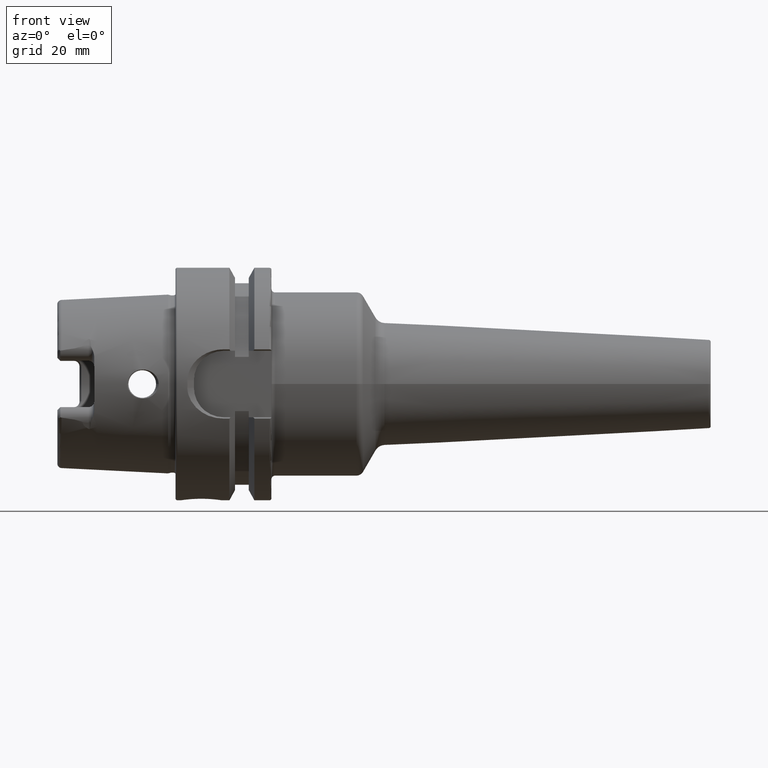
[diagram: clean part render]
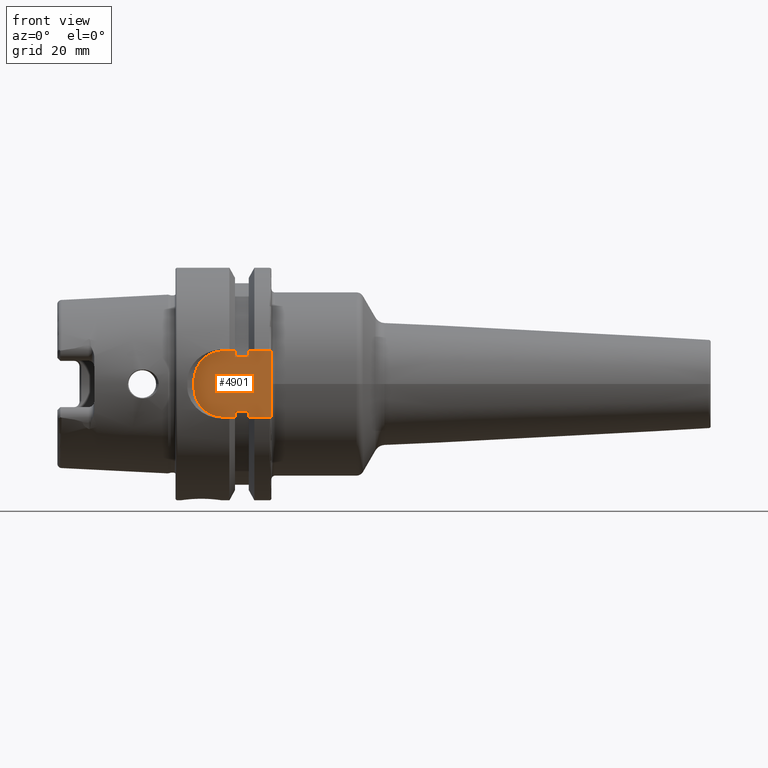
[diagram: same view with one face highlighted and labeled with its STEP entity id]
A machine part, front view. The second image highlights one B-rep face of the part: STEP entity #4901.
In plain terms, the highlighted planar face has unit normal (0, 1, 0).
Its self-contained STEP definition (entity closure, byte-faithful):
#1694=DIRECTION('',(0.E0,0.E0,1.E0));
#1695=VECTOR('',#1694,1.651530771650E0);
#1696=CARTESIAN_POINT('',(1.6125E1,-2.65E1,-9.E0));
#1697=LINE('',#1696,#1695);
#1726=DIRECTION('',(0.E0,0.E0,1.E0));
#1727=VECTOR('',#1726,1.651530771650E0);
#1728=CARTESIAN_POINT('',(1.6125E1,-2.65E1,7.348469228350E0));
#1729=LINE('',#1728,#1727);
#1734=CARTESIAN_POINT('',(1.3E1,-2.65E1,1.E0));
#1735=DIRECTION('',(0.E0,-1.E0,0.E0));
#1736=DIRECTION('',(0.E0,0.E0,1.E0));
#1737=AXIS2_PLACEMENT_3D('',#1734,#1735,#1736);
#1739=DIRECTION('',(1.E0,0.E0,0.E0));
#1740=VECTOR('',#1739,3.125E0);
#1741=CARTESIAN_POINT('',(1.3E1,-2.65E1,9.E0));
#1742=LINE('',#1741,#1740);
#1743=DIRECTION('',(1.E0,0.E0,0.E0));
#1744=VECTOR('',#1743,6.125E0);
#1745=CARTESIAN_POINT('',(1.9875E1,-2.65E1,9.E0));
#1746=LINE('',#1745,#1744);
#1747=DIRECTION('',(-1.E0,0.E0,0.E0));
#1748=VECTOR('',#1747,6.125E0);
#1749=CARTESIAN_POINT('',(2.6E1,-2.65E1,-9.E0));
#1750=LINE('',#1749,#1748);
#1751=DIRECTION('',(-1.E0,0.E0,0.E0));
#1752=VECTOR('',#1751,3.125E0);
#1753=CARTESIAN_POINT('',(1.6125E1,-2.65E1,-9.E0));
#1754=LINE('',#1753,#1752);
#1755=CARTESIAN_POINT('',(1.3E1,-2.65E1,-1.E0));
#1756=DIRECTION('',(0.E0,-1.E0,0.E0));
#1757=DIRECTION('',(-1.E0,0.E0,0.E0));
#1758=AXIS2_PLACEMENT_3D('',#1755,#1756,#1757);
#1760=DIRECTION('',(0.E0,0.E0,1.E0));
#1761=VECTOR('',#1760,2.E0);
#1762=CARTESIAN_POINT('',(5.E0,-2.65E1,-1.E0));
#1763=LINE('',#1762,#1761);
#1881=DIRECTION('',(1.E0,0.E0,0.E0));
#1882=VECTOR('',#1881,3.75E0);
#1883=CARTESIAN_POINT('',(1.6125E1,-2.65E1,7.348469228350E0));
#1884=LINE('',#1883,#1882);
#1899=DIRECTION('',(1.E0,0.E0,0.E0));
#1900=VECTOR('',#1899,3.75E0);
#1901=CARTESIAN_POINT('',(1.6125E1,-2.65E1,-7.348469228350E0));
#1902=LINE('',#1901,#1900);
#1917=DIRECTION('',(0.E0,0.E0,1.E0));
#1918=VECTOR('',#1917,1.651530771650E0);
#1919=CARTESIAN_POINT('',(1.9875E1,-2.65E1,-9.E0));
#1920=LINE('',#1919,#1918);
#1941=DIRECTION('',(0.E0,0.E0,1.E0));
#1942=VECTOR('',#1941,1.651530771650E0);
#1943=CARTESIAN_POINT('',(1.9875E1,-2.65E1,7.348469228350E0));
#1944=LINE('',#1943,#1942);
#2106=DIRECTION('',(0.E0,0.E0,1.E0));
#2107=VECTOR('',#2106,1.8E1);
#2108=CARTESIAN_POINT('',(2.6E1,-2.65E1,-9.E0));
#2109=LINE('',#2108,#2107);
#2591=CARTESIAN_POINT('',(2.6E1,-2.65E1,-9.E0));
#2592=CARTESIAN_POINT('',(2.6E1,-2.65E1,9.E0));
#2593=VERTEX_POINT('',#2591);
#2594=VERTEX_POINT('',#2592);
#2595=CARTESIAN_POINT('',(1.6125E1,-2.65E1,-9.E0));
#2596=CARTESIAN_POINT('',(1.6125E1,-2.65E1,-7.348469228350E0));
#2597=VERTEX_POINT('',#2595);
#2598=VERTEX_POINT('',#2596);
#2599=CARTESIAN_POINT('',(1.6125E1,-2.65E1,7.348469228350E0));
#2600=CARTESIAN_POINT('',(1.6125E1,-2.65E1,9.E0));
#2601=VERTEX_POINT('',#2599);
#2602=VERTEX_POINT('',#2600);
#2607=CARTESIAN_POINT('',(1.9875E1,-2.65E1,7.348469228350E0));
#2608=VERTEX_POINT('',#2607);
#2609=CARTESIAN_POINT('',(1.9875E1,-2.65E1,-7.348469228350E0));
#2610=VERTEX_POINT('',#2609);
#2611=CARTESIAN_POINT('',(1.9875E1,-2.65E1,-9.E0));
#2612=VERTEX_POINT('',#2611);
#2613=CARTESIAN_POINT('',(1.9875E1,-2.65E1,9.E0));
#2614=VERTEX_POINT('',#2613);
#2619=CARTESIAN_POINT('',(1.3E1,-2.65E1,9.E0));
#2620=CARTESIAN_POINT('',(5.E0,-2.65E1,1.E0));
#2621=VERTEX_POINT('',#2619);
#2622=VERTEX_POINT('',#2620);
#2623=CARTESIAN_POINT('',(5.E0,-2.65E1,-1.E0));
#2624=CARTESIAN_POINT('',(1.3E1,-2.65E1,-9.E0));
#2625=VERTEX_POINT('',#2623);
#2626=VERTEX_POINT('',#2624);
#4868=CARTESIAN_POINT('',(0.E0,-2.65E1,0.E0));
#4869=DIRECTION('',(0.E0,1.E0,0.E0));
#4870=DIRECTION('',(-1.E0,0.E0,0.E0));
#4871=AXIS2_PLACEMENT_3D('',#4868,#4869,#4870);
#4872=PLANE('',#4871);
#4874=ORIENTED_EDGE('',*,*,#4873,.F.);
#4876=ORIENTED_EDGE('',*,*,#4875,.T.);
#4877=ORIENTED_EDGE('',*,*,#4860,.F.);
#4879=ORIENTED_EDGE('',*,*,#4878,.T.);
#4881=ORIENTED_EDGE('',*,*,#4880,.T.);
#4883=ORIENTED_EDGE('',*,*,#4882,.T.);
#4885=ORIENTED_EDGE('',*,*,#4884,.F.);
#4887=ORIENTED_EDGE('',*,*,#4886,.T.);
#4889=ORIENTED_EDGE('',*,*,#4888,.T.);
#4891=ORIENTED_EDGE('',*,*,#4890,.F.);
#4892=ORIENTED_EDGE('',*,*,#4831,.F.);
#4894=ORIENTED_EDGE('',*,*,#4893,.T.);
#4896=ORIENTED_EDGE('',*,*,#4895,.F.);
#4898=ORIENTED_EDGE('',*,*,#4897,.T.);
#4899=EDGE_LOOP('',(#4874,#4876,#4877,#4879,#4881,#4883,#4885,#4887,#4889,#4891,
#4892,#4894,#4896,#4898));
#4900=FACE_OUTER_BOUND('',#4899,.F.);
#4901=ADVANCED_FACE('',(#4900),#4872,.F.);
#1738=CIRCLE('',#1737,8.E0);
#1759=CIRCLE('',#1758,8.E0);
#4831=EDGE_CURVE('',#2597,#2598,#1697,.T.);
#4860=EDGE_CURVE('',#2601,#2602,#1729,.T.);
#4873=EDGE_CURVE('',#2621,#2622,#1738,.T.);
#4875=EDGE_CURVE('',#2621,#2602,#1742,.T.);
#4878=EDGE_CURVE('',#2601,#2608,#1884,.T.);
#4880=EDGE_CURVE('',#2608,#2614,#1944,.T.);
#4882=EDGE_CURVE('',#2614,#2594,#1746,.T.);
#4884=EDGE_CURVE('',#2593,#2594,#2109,.T.);
#4886=EDGE_CURVE('',#2593,#2612,#1750,.T.);
#4888=EDGE_CURVE('',#2612,#2610,#1920,.T.);
#4890=EDGE_CURVE('',#2598,#2610,#1902,.T.);
#4893=EDGE_CURVE('',#2597,#2626,#1754,.T.);
#4895=EDGE_CURVE('',#2625,#2626,#1759,.T.);
#4897=EDGE_CURVE('',#2625,#2622,#1763,.T.);